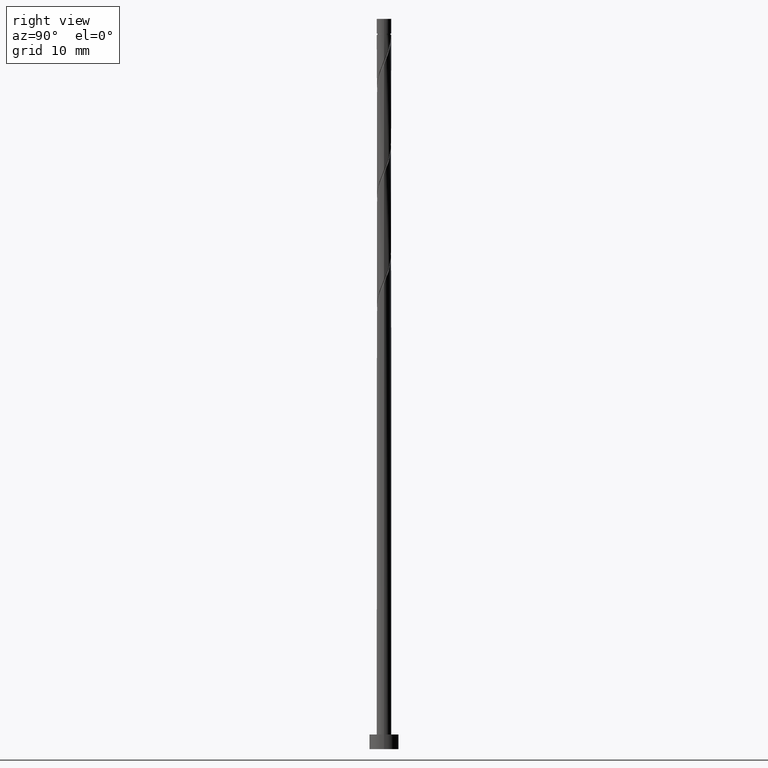
[diagram: clean part render]
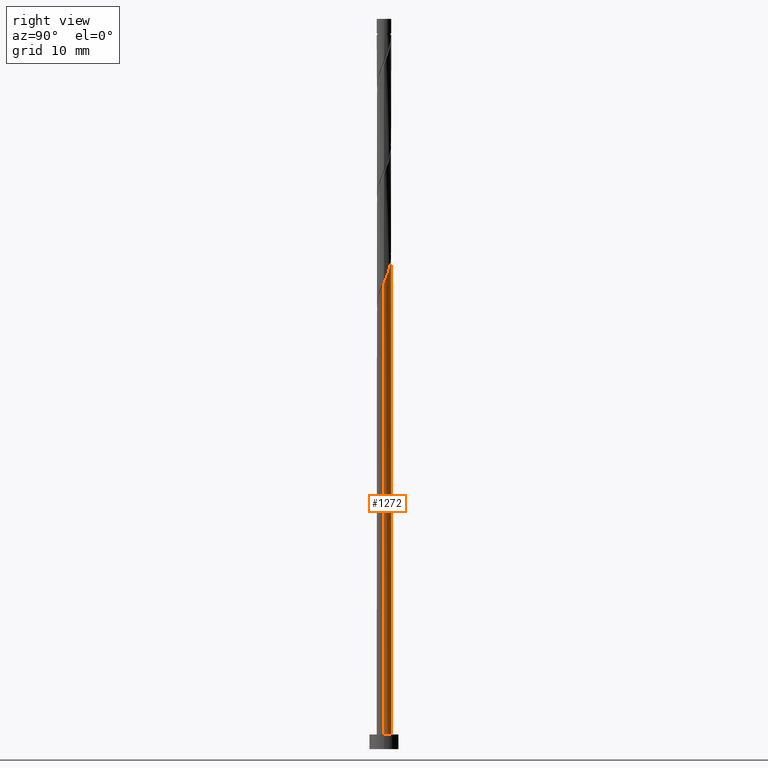
[diagram: same view with one face highlighted and labeled with its STEP entity id]
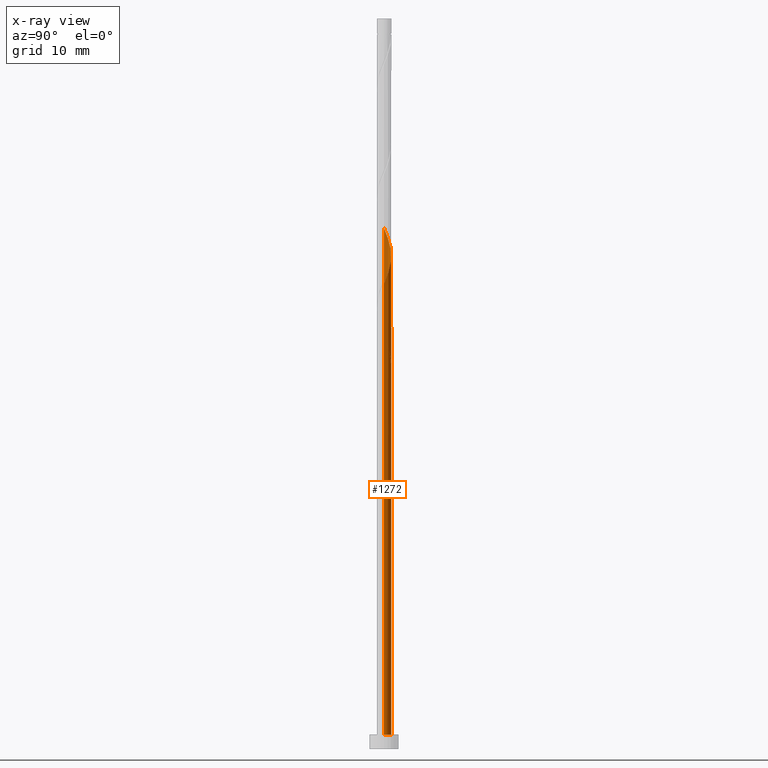
[diagram: x-ray of the same camera — body ghosted, the highlighted face saturated]
A machine part, right view. The second image highlights one B-rep face of the part: STEP entity #1272.
The next image is the same camera in x-ray: the body ghosted, the highlighted face saturated — about 0% of this face is hidden behind the body in this view.
In plain terms, the highlighted cylindrical surface (edge-blend (fillet) strip) has radius 1 mm, axis along (-0, -0, -1).
Its self-contained STEP definition (entity closure, byte-faithful):
#9 = CARTESIAN_POINT ( 'NONE',  ( -1.000000000000000000, 0.000000000000000000, 2.000000000000000000 ) ) ;
#23 = CARTESIAN_POINT ( 'NONE',  ( -0.9999999999999997780, -8.453207281310098825E-15, 56.31035135352637155 ) ) ;
#24 = CARTESIAN_POINT ( 'NONE',  ( -0.9116327376541116800, 0.4110057805399690567, 70.29999999999999716 ) ) ;
#28 = CIRCLE ( 'NONE', #755, 1.000000000000000000 ) ;
#34 = CARTESIAN_POINT ( 'NONE',  ( 0.2464583156134448894, 0.9691533927428533923, 66.96666666666668277 ) ) ;
#53 = CARTESIAN_POINT ( 'NONE',  ( -0.8391613293177733190, 0.5717512286855107595, 54.88333333333332575 ) ) ;
#92 = CARTESIAN_POINT ( 'NONE',  ( -0.5630650428037468069, 0.8264125831401737399, 54.46666666666666856 ) ) ;
#136 = EDGE_CURVE ( 'NONE', #289, #680, #938, .T. ) ;
#142 =( BOUNDED_CURVE ( )  B_SPLINE_CURVE ( 2, ( #923, #808, #249, #689, #1142, #583, #92, #1037, #1478, #452, #567 ),
 .UNSPECIFIED., .F., .T. ) 
 B_SPLINE_CURVE_WITH_KNOTS ( ( 3, 2, 2, 2, 2, 3 ),
 ( 0.9335262615578967527, 0.9444444444444444198, 0.9583333333333333703, 0.9722222222222222099, 0.9861111111111111605, 1.000000000000000000 ),
 .UNSPECIFIED. ) 
 CURVE ( )  GEOMETRIC_REPRESENTATION_ITEM ( )  RATIONAL_B_SPLINE_CURVE ( ( 0.9475153373969248394, 0.9410068908218454098, 0.9523809523809528832, 0.9379121457259129713, 0.9523809523809528832, 0.9379121457259129713, 0.9523809523809528832, 0.9379121457259129713, 0.9523809523809528832, 0.9379121457259129713, 0.9523809523809528832 ) ) 
 REPRESENTATION_ITEM ( '' )  );
#145 = CIRCLE ( 'NONE', #341, 1.000000000000000000 ) ;
#146 = ORIENTED_EDGE ( 'NONE', *, *, #1401, .F. ) ;
#151 = CARTESIAN_POINT ( 'NONE',  ( -0.8391613293177733190, 0.5717512286855107595, 69.88333333333332575 ) ) ;
#159 = CARTESIAN_POINT ( 'NONE',  ( -0.7160823004724661267, 0.6980158586665925480, 69.46666666666665435 ) ) ;
#177 = FACE_OUTER_BOUND ( 'NONE', #430, .T. ) ;
#182 = ORIENTED_EDGE ( 'NONE', *, *, #136, .F. ) ;
#187 = LINE ( 'NONE', #531, #625 ) ;
#193 = ORIENTED_EDGE ( 'NONE', *, *, #447, .F. ) ;
#228 = EDGE_CURVE ( 'NONE', #289, #389, #28, .T. ) ;
#238 = ORIENTED_EDGE ( 'NONE', *, *, #781, .T. ) ;
#249 = CARTESIAN_POINT ( 'NONE',  ( -0.9625406160859105720, 0.2711375340762611774, 56.13333333333331865 ) ) ;
#255 = DIRECTION ( 'NONE',  ( -0.000000000000000000, -0.000000000000000000, -1.000000000000000000 ) ) ;
#271 = CARTESIAN_POINT ( 'NONE',  ( 0.4173462071991573263, 0.9256961420802408691, 66.55000000000001137 ) ) ;
#275 = VERTEX_POINT ( 'NONE', #683 ) ;
#289 = VERTEX_POINT ( 'NONE', #692 ) ;
#303 = CARTESIAN_POINT ( 'NONE',  ( -0.7160823004724661267, 0.6980158586665925480, 54.46666666666666856 ) ) ;
#327 = CARTESIAN_POINT ( 'NONE',  ( 1.000000000000000000, 1.224646799147353207E-16, 2.000000000000000000 ) ) ;
#337 = AXIS2_PLACEMENT_3D ( 'NONE', #544, #1008, #892 ) ;
#341 = AXIS2_PLACEMENT_3D ( 'NONE', #375, #1061, #382 ) ;
#342 = VERTEX_POINT ( 'NONE', #327 ) ;
#371 = EDGE_CURVE ( 'NONE', #275, #1210, #1029, .T. ) ;
#374 = CARTESIAN_POINT ( 'NONE',  ( -0.5930032716271594895, 0.8242804886476743365, 69.04999999999998295 ) ) ;
#375 = CARTESIAN_POINT ( 'NONE',  ( 0.000000000000000000, 0.000000000000000000, 2.000000000000000000 ) ) ;
#378 = LINE ( 'NONE', #1168, #1212 ) ;
#382 = DIRECTION ( 'NONE',  ( 1.000000000000000000, 0.000000000000000000, 0.000000000000000000 ) ) ;
#389 = VERTEX_POINT ( 'NONE', #393 ) ;
#393 = CARTESIAN_POINT ( 'NONE',  ( 0.09987492177719117792, 0.9949999999999999956, 52.79999999999999716 ) ) ;
#399 = CARTESIAN_POINT ( 'NONE',  ( 0.7087838784083370092, 0.7271290242001062776, 65.71666666666665435 ) ) ;
#423 = CARTESIAN_POINT ( 'NONE',  ( -0.9116327376541116800, 0.4110057805399690567, 55.30000000000001137 ) ) ;
#430 = EDGE_LOOP ( 'NONE', ( #793, #238, #1150, #193, #182, #809, #1103, #146 ) ) ;
#436 = CARTESIAN_POINT ( 'NONE',  ( 0.000000000000000000, 0.000000000000000000, 52.79999999999999716 ) ) ;
#442 = CARTESIAN_POINT ( 'NONE',  ( -0.09987492177719069220, 0.9949999999999997735, 52.79999999999999716 ) ) ;
#447 = EDGE_CURVE ( 'NONE', #680, #1024, #482, .T. ) ;
#452 = CARTESIAN_POINT ( 'NONE',  ( -0.07557042402773173073, 1.012610643405466249, 53.21666666666666856 ) ) ;
#471 = VERTEX_POINT ( 'NONE', #612 ) ;
#482 = LINE ( 'NONE', #948, #609 ) ;
#506 = CARTESIAN_POINT ( 'NONE',  ( -0.09987492177719069220, 0.9949999999999999956, 67.79999999999999716 ) ) ;
#514 = CARTESIAN_POINT ( 'NONE',  ( 0.9147317533455051608, 0.4408594147199549895, 64.88333333333335418 ) ) ;
#527 = CARTESIAN_POINT ( 'NONE',  ( -0.9972268124083832896, 0.07442233948093028573, 56.13333333333333997 ) ) ;
#531 = CARTESIAN_POINT ( 'NONE',  ( -1.000000000000000000, 0.000000000000000000, 100.0000000000000000 ) ) ;
#544 = CARTESIAN_POINT ( 'NONE',  ( 0.000000000000000000, 0.000000000000000000, 100.0000000000000000 ) ) ;
#567 = CARTESIAN_POINT ( 'NONE',  ( 0.09987492177719117792, 0.9949999999999999956, 52.79999999999999005 ) ) ;
#568 = CARTESIAN_POINT ( 'NONE',  ( -0.4341617696046364827, 0.9008349226211040950, 53.63333333333332575 ) ) ;
#583 = CARTESIAN_POINT ( 'NONE',  ( -0.7087838784083368981, 0.7271290242001066106, 54.88333333333333997 ) ) ;
#605 = CARTESIAN_POINT ( 'NONE',  ( 0.9625406160859107940, 0.2711375340762608444, 64.46666666666668277 ) ) ;
#609 = VECTOR ( 'NONE', #1388, 1000.000000000000000 ) ;
#612 = CARTESIAN_POINT ( 'NONE',  ( -1.000000000000000222, 1.930935673395703404E-16, 56.78964864647364408 ) ) ;
#618 = CARTESIAN_POINT ( 'NONE',  ( -0.9972268124083832896, 0.07442233948093028573, 71.13333333333331154 ) ) ;
#625 = VECTOR ( 'NONE', #1118, 1000.000000000000000 ) ;
#626 = CARTESIAN_POINT ( 'NONE',  ( -0.5930032716271594895, 0.8242804886476743365, 54.05000000000001137 ) ) ;
#680 = VERTEX_POINT ( 'NONE', #23 ) ;
#683 = CARTESIAN_POINT ( 'NONE',  ( 1.000000000000000000, 7.866774965686214893E-17, 63.81035135352636445 ) ) ;
#689 = CARTESIAN_POINT ( 'NONE',  ( -0.9147317533455050498, 0.4408594147199556557, 55.71666666666665435 ) ) ;
#692 = CARTESIAN_POINT ( 'NONE',  ( -0.09987492177719069220, 0.9949999999999997735, 52.79999999999999716 ) ) ;
#734 = CARTESIAN_POINT ( 'NONE',  ( 0.8117578158769208629, 0.5839942194600310499, 65.29999999999999716 ) ) ;
#755 = AXIS2_PLACEMENT_3D ( 'NONE', #436, #1226, #1145 ) ;
#762 = CARTESIAN_POINT ( 'NONE',  ( -0.9841041459904503741, 0.2502603323944274094, 55.71666666666666856 ) ) ;
#781 = EDGE_CURVE ( 'NONE', #275, #342, #378, .T. ) ;
#793 = ORIENTED_EDGE ( 'NONE', *, *, #371, .F. ) ;
#808 = CARTESIAN_POINT ( 'NONE',  ( -0.9999999999999993339, 0.1381563937346801385, 56.45980160168809192 ) ) ;
#809 = ORIENTED_EDGE ( 'NONE', *, *, #228, .T. ) ;
#857 = CARTESIAN_POINT ( 'NONE',  ( 0.9999999999999985567, 0.1381563937346822202, 64.14019839831192371 ) ) ;
#864 = CARTESIAN_POINT ( 'NONE',  ( -1.000000000000000000, -8.581936326203144864E-17, 71.31035135352634313 ) ) ;
#878 = CARTESIAN_POINT ( 'NONE',  ( -1.000000000000000000, 0.03726283816066924826, 56.22138669025333968 ) ) ;
#892 = DIRECTION ( 'NONE',  ( -1.000000000000000000, 0.000000000000000000, 0.000000000000000000 ) ) ;
#923 = CARTESIAN_POINT ( 'NONE',  ( -1.000000000000000222, 1.930935673395703650E-16, 56.78964864647364408 ) ) ;
#938 =( BOUNDED_CURVE ( )  B_SPLINE_CURVE ( 2, ( #442, #1231, #568, #626, #303, #53, #423, #762, #527, #878, #1088 ),
 .UNSPECIFIED., .F., .T. ) 
 B_SPLINE_CURVE_WITH_KNOTS ( ( 3, 2, 2, 2, 2, 3 ),
 ( 0.000000000000000000, 0.01388888888888883955, 0.02777777777777779011, 0.04166666666666662966, 0.05555555555555558023, 0.05852626155789682205 ),
 .UNSPECIFIED. ) 
 CURVE ( )  GEOMETRIC_REPRESENTATION_ITEM ( )  RATIONAL_B_SPLINE_CURVE ( ( 0.9523809523809509958, 0.9379121457259110839, 0.9523809523809509958, 0.9379121457259110839, 0.9523809523809509958, 0.9379121457259110839, 0.9523809523809509958, 0.9379121457259110839, 0.9523809523809509958, 0.9492862072850183353, 0.9475153373969229520 ) ) 
 REPRESENTATION_ITEM ( '' )  );
#948 = CARTESIAN_POINT ( 'NONE',  ( -1.000000000000000000, 0.000000000000000000, 100.0000000000000000 ) ) ;
#949 = EDGE_CURVE ( 'NONE', #471, #389, #142, .T. ) ;
#971 = CARTESIAN_POINT ( 'NONE',  ( -0.9999999999999995559, 0.03726283816067638144, 71.22138669025331126 ) ) ;
#978 = CARTESIAN_POINT ( 'NONE',  ( 0.07557042402773175849, 1.012610643405466027, 67.38333333333333997 ) ) ;
#994 = CYLINDRICAL_SURFACE ( 'NONE', #337, 1.000000000000000000 ) ;
#1008 = DIRECTION ( 'NONE',  ( -0.000000000000000000, -0.000000000000000000, -1.000000000000000000 ) ) ;
#1024 = VERTEX_POINT ( 'NONE', #9 ) ;
#1029 =( BOUNDED_CURVE ( )  B_SPLINE_CURVE ( 2, ( #1183, #857, #605, #514, #734, #399, #1290, #271, #34, #978, #506, #1060, #1178, #374, #159, #151, #24, #1082, #618, #971, #1412 ),
 .UNSPECIFIED., .F., .T. ) 
 B_SPLINE_CURVE_WITH_KNOTS ( ( 3, 2, 2, 2, 2, 2, 2, 2, 2, 2, 3 ),
 ( 0.1835262615578969470, 0.1944444444444444198, 0.2083333333333333703, 0.2222222222222222099, 0.2361111111111111605, 0.2500000000000000000, 0.2638888888888888395, 0.2777777777777777901, 0.2916666666666666297, 0.3055555555555555802, 0.3085262615578962531 ),
 .UNSPECIFIED. ) 
 CURVE ( )  GEOMETRIC_REPRESENTATION_ITEM ( )  RATIONAL_B_SPLINE_CURVE ( ( 0.9475153373969227300, 0.9410068908218438555, 0.9523809523809509958, 0.9379121457259110839, 0.9523809523809509958, 0.9379121457259110839, 0.9523809523809509958, 0.9379121457259110839, 0.9523809523809509958, 0.9379121457259110839, 0.9523809523809509958, 0.9379121457259110839, 0.9523809523809509958, 0.9379121457259110839, 0.9523809523809509958, 0.9379121457259110839, 0.9523809523809509958, 0.9379121457259110839, 0.9523809523809509958, 0.9492862072850190014, 0.9475153373969236181 ) ) 
 REPRESENTATION_ITEM ( '' )  );
#1037 = CARTESIAN_POINT ( 'NONE',  ( -0.4173462071991568267, 0.9256961420802414242, 54.05000000000000426 ) ) ;
#1060 = CARTESIAN_POINT ( 'NONE',  ( -0.2753202675821135870, 0.9773893565945337425, 68.21666666666666856 ) ) ;
#1061 = DIRECTION ( 'NONE',  ( 0.000000000000000000, 0.000000000000000000, 1.000000000000000000 ) ) ;
#1082 = CARTESIAN_POINT ( 'NONE',  ( -0.9841041459904503741, 0.2502603323944274094, 70.71666666666669698 ) ) ;
#1088 = CARTESIAN_POINT ( 'NONE',  ( -0.9999999999999997780, -8.453207281310098825E-15, 56.31035135352637155 ) ) ;
#1103 = ORIENTED_EDGE ( 'NONE', *, *, #949, .F. ) ;
#1118 = DIRECTION ( 'NONE',  ( -0.000000000000000000, -0.000000000000000000, -1.000000000000000000 ) ) ;
#1142 = CARTESIAN_POINT ( 'NONE',  ( -0.8117578158769209740, 0.5839942194600310499, 55.30000000000000426 ) ) ;
#1145 = DIRECTION ( 'NONE',  ( -1.000000000000000000, 0.000000000000000000, 0.000000000000000000 ) ) ;
#1150 = ORIENTED_EDGE ( 'NONE', *, *, #1189, .T. ) ;
#1168 = CARTESIAN_POINT ( 'NONE',  ( 1.000000000000000000, 1.224646799147353207E-16, 100.0000000000000000 ) ) ;
#1178 = CARTESIAN_POINT ( 'NONE',  ( -0.4341617696046364827, 0.9008349226211040950, 68.63333333333335418 ) ) ;
#1183 = CARTESIAN_POINT ( 'NONE',  ( 1.000000000000000000, 7.866774965686214893E-17, 63.81035135352636445 ) ) ;
#1189 = EDGE_CURVE ( 'NONE', #342, #1024, #145, .T. ) ;
#1210 = VERTEX_POINT ( 'NONE', #864 ) ;
#1212 = VECTOR ( 'NONE', #255, 1000.000000000000000 ) ;
#1226 = DIRECTION ( 'NONE',  ( 0.000000000000000000, -0.000000000000000000, -1.000000000000000000 ) ) ;
#1231 = CARTESIAN_POINT ( 'NONE',  ( -0.2753202675821135870, 0.9773893565945337425, 53.21666666666666856 ) ) ;
#1272 = ADVANCED_FACE ( 'NONE', ( #177 ), #994, .T. ) ;
#1290 = CARTESIAN_POINT ( 'NONE',  ( 0.5630650428037471400, 0.8264125831401735178, 66.13333333333333997 ) ) ;
#1388 = DIRECTION ( 'NONE',  ( -0.000000000000000000, -0.000000000000000000, -1.000000000000000000 ) ) ;
#1401 = EDGE_CURVE ( 'NONE', #1210, #471, #187, .T. ) ;
#1412 = CARTESIAN_POINT ( 'NONE',  ( -1.000000000000000000, -8.581936326203146096E-17, 71.31035135352634313 ) ) ;
#1478 = CARTESIAN_POINT ( 'NONE',  ( -0.2464583156134442510, 0.9691533927428537254, 53.63333333333333286 ) ) ;